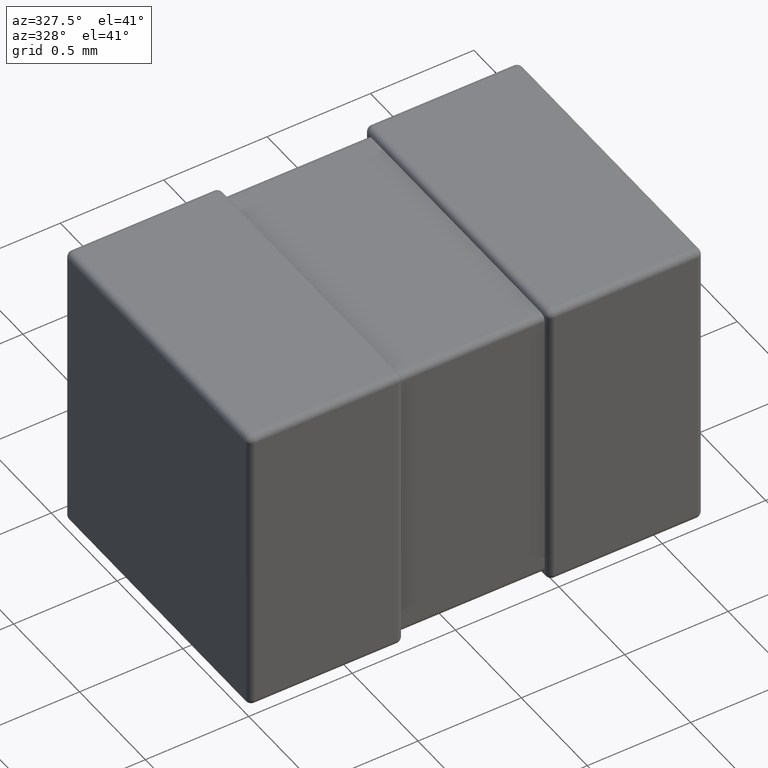
[diagram: clean part render]
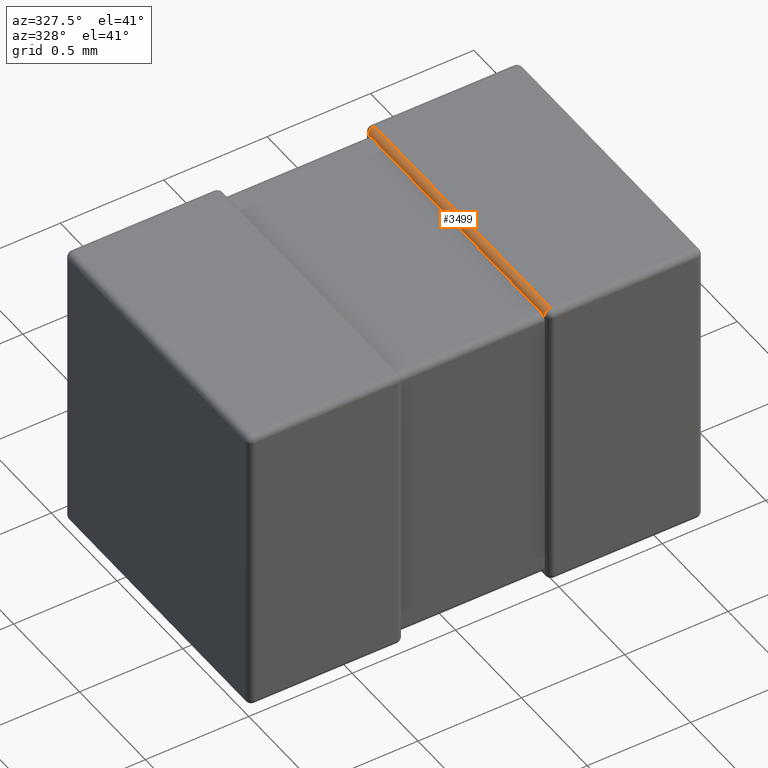
[diagram: same view with one face highlighted and labeled with its STEP entity id]
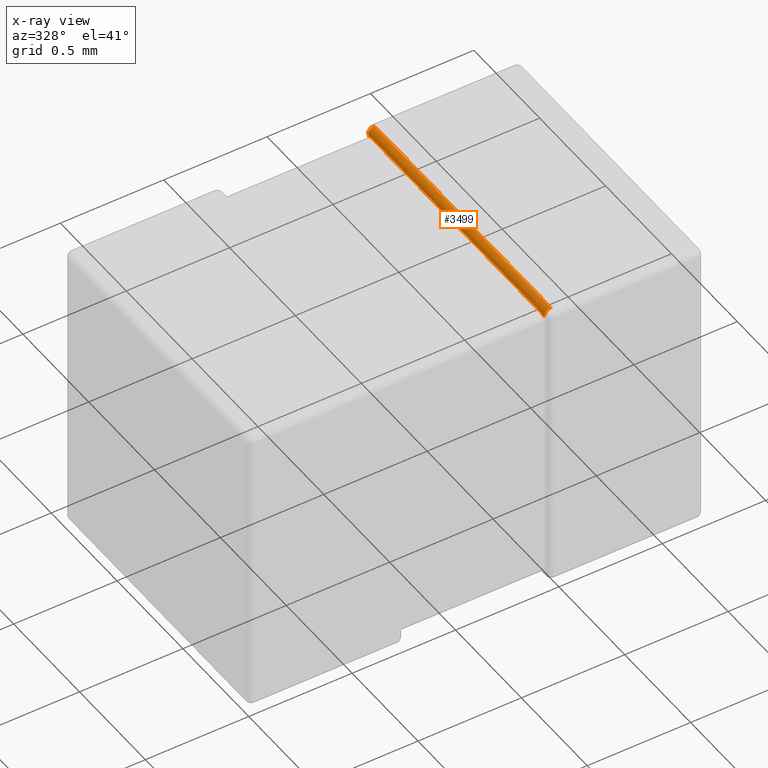
[diagram: x-ray of the same camera — body ghosted, the highlighted face saturated]
A machine part, auxiliary view. The second image highlights one B-rep face of the part: STEP entity #3499.
The next image is the same camera in x-ray: the body ghosted, the highlighted face saturated — about 0% of this face is hidden behind the body in this view.
In plain terms, the highlighted cylindrical surface (edge-blend (fillet) strip) has radius 0.0302 mm, axis along (-0, 1, 0).
Its self-contained STEP definition (entity closure, byte-faithful):
#59 = DIRECTION ( 'NONE',  ( 0.000000000000000000, 0.000000000000000000, -1.000000000000000000 ) ) ;
#113 = CARTESIAN_POINT ( 'NONE',  ( 1.450444151710232443, 0.03612577674720130610, -0.03612577674720130610 ) ) ;
#171 = CARTESIAN_POINT ( 'NONE',  ( 1.451322662047238810, 1.361006340520586333, -0.03899365947941371702 ) ) ;
#181 = CARTESIAN_POINT ( 'NONE',  ( 1.450000000000000400, 0.000000000000000000, -0.03015999999999999584 ) ) ;
#316 = DIRECTION ( 'NONE',  ( 0.000000000000000000, 0.000000000000000000, 1.000000000000000000 ) ) ;
#343 = VERTEX_POINT ( 'NONE', #3835 ) ;
#461 = VERTEX_POINT ( 'NONE', #3166 ) ;
#463 = CARTESIAN_POINT ( 'NONE',  ( 1.450000000000000400, 1.339679999999999982, -0.03015999999999999584 ) ) ;
#467 = CARTESIAN_POINT ( 'NONE',  ( 1.450000000000000400, 0.03315942190729302685, -0.03315942190729302685 ) ) ;
#496 = CARTESIAN_POINT ( 'NONE',  ( 1.480160000000000142, 0.03015999999999999931, -0.03015999999999999931 ) ) ;
#589 = CARTESIAN_POINT ( 'NONE',  ( 1.451322662047238810, 0.03899365947941372396, -0.03899365947941371702 ) ) ;
#621 = VECTOR ( 'NONE', #3748, 1000.000000000000000 ) ;
#625 = FACE_OUTER_BOUND ( 'NONE', #2389, .T. ) ;
#725 = DIRECTION ( 'NONE',  ( -0.000000000000000000, 1.000000000000000000, 0.000000000000000000 ) ) ;
#798 = EDGE_CURVE ( 'NONE', #1061, #4195, #1404, .T. ) ;
#804 = CARTESIAN_POINT ( 'NONE',  ( 1.480160000000000142, 1.369839999999999947, -0.03015999999999999584 ) ) ;
#811 = CARTESIAN_POINT ( 'NONE',  ( 1.450000000000000400, 0.05697444374258201633, -0.03015999999999999584 ) ) ;
#852 = CARTESIAN_POINT ( 'NONE',  ( 1.450253192700503124, 0.04423577735503604613, -0.03459190291318161442 ) ) ;
#874 = ORIENTED_EDGE ( 'NONE', *, *, #2045, .T. ) ;
#898 =( BOUNDED_CURVE ( )  B_SPLINE_CURVE ( 3, ( #1593, #467, #113, #2274 ),
 .UNSPECIFIED., .F., .F. ) 
 B_SPLINE_CURVE_WITH_KNOTS ( ( 4, 4 ),
 ( 4.712388980384689674, 5.009640341705894784 ),
 .UNSPECIFIED. ) 
 CURVE ( )  GEOMETRIC_REPRESENTATION_ITEM ( )  RATIONAL_B_SPLINE_CURVE ( ( 1.000000000000000000, 0.9926503465430338569, 0.9926503465430338569, 1.000000000000000000 ) ) 
 REPRESENTATION_ITEM ( '' )  );
#997 = EDGE_CURVE ( 'NONE', #4195, #343, #1857, .T. ) ;
#1004 = ORIENTED_EDGE ( 'NONE', *, *, #997, .F. ) ;
#1014 = CYLINDRICAL_SURFACE ( 'NONE', #2065, 0.03015999999999999931 ) ;
#1061 = VERTEX_POINT ( 'NONE', #3992 ) ;
#1244 = CARTESIAN_POINT ( 'NONE',  ( 1.450002264867094270, 1.344387257356502330, -0.03052961013716579131 ) ) ;
#1322 = LINE ( 'NONE', #181, #621 ) ;
#1401 = CARTESIAN_POINT ( 'NONE',  ( 1.451322662047238810, 0.03899365947941372396, -0.03899365947941371702 ) ) ;
#1404 = LINE ( 'NONE', #2825, #1641 ) ;
#1531 = ORIENTED_EDGE ( 'NONE', *, *, #4112, .T. ) ;
#1537 = CARTESIAN_POINT ( 'NONE',  ( 1.450000000000000400, 0.06031999999999999168, -0.03015999999999999584 ) ) ;
#1588 = CARTESIAN_POINT ( 'NONE',  ( 1.450652778470559623, 1.358819516460329169, -0.03680683541915661522 ) ) ;
#1593 = CARTESIAN_POINT ( 'NONE',  ( 1.450000000000000178, 0.03015999999999999584, -0.03015999999999999584 ) ) ;
#1641 = VECTOR ( 'NONE', #2067, 1000.000000000000000 ) ;
#1735 = VERTEX_POINT ( 'NONE', #3704 ) ;
#1857 = CIRCLE ( 'NONE', #4340, 0.03015999999999999931 ) ;
#1879 = VERTEX_POINT ( 'NONE', #463 ) ;
#1898 = CARTESIAN_POINT ( 'NONE',  ( 1.450000000000000400, 1.369839999999999947, -0.03015999999999999584 ) ) ;
#1901 = CARTESIAN_POINT ( 'NONE',  ( 1.450867674844866118, 0.04070245295749673475, -0.03738143296497643819 ) ) ;
#2045 = EDGE_CURVE ( 'NONE', #1061, #461, #2907, .T. ) ;
#2065 = AXIS2_PLACEMENT_3D ( 'NONE', #3440, #725, #316 ) ;
#2066 = ORIENTED_EDGE ( 'NONE', *, *, #798, .F. ) ;
#2067 = DIRECTION ( 'NONE',  ( -0.000000000000000000, -1.000000000000000000, -0.000000000000000000 ) ) ;
#2200 = EDGE_CURVE ( 'NONE', #343, #2665, #898, .T. ) ;
#2206 = ORIENTED_EDGE ( 'NONE', *, *, #2200, .F. ) ;
#2263 = CARTESIAN_POINT ( 'NONE',  ( 1.450107203367576814, 0.04726016830809479097, -0.03292877063282503153 ) ) ;
#2274 = CARTESIAN_POINT ( 'NONE',  ( 1.451322662047238810, 0.03899365947941372396, -0.03899365947941371702 ) ) ;
#2298 = CARTESIAN_POINT ( 'NONE',  ( 1.450444151710232665, 1.363874223252798723, -0.03612577674720132692 ) ) ;
#2343 = ORIENTED_EDGE ( 'NONE', *, *, #3197, .F. ) ;
#2389 = EDGE_LOOP ( 'NONE', ( #874, #3521, #1531, #2343, #3647, #2206, #1004, #2066 ) ) ;
#2597 = CARTESIAN_POINT ( 'NONE',  ( 1.450046268899098267, 0.05042334500700668826, -0.03182996981486924809 ) ) ;
#2665 = VERTEX_POINT ( 'NONE', #1401 ) ;
#2668 = CARTESIAN_POINT ( 'NONE',  ( 1.450338001875950189, 1.356198597072136858, -0.03488872359085079533 ) ) ;
#2688 = CARTESIAN_POINT ( 'NONE',  ( 1.450008297138921209, 1.347502156549001517, -0.03102180349905758056 ) ) ;
#2701 = CARTESIAN_POINT ( 'NONE',  ( 1.451069819438131292, 0.03981906007100202705, -0.03816825888768488745 ) ) ;
#2825 = CARTESIAN_POINT ( 'NONE',  ( 1.480160000000000142, 0.000000000000000000, 0.000000000000000000 ) ) ;
#2907 = CIRCLE ( 'NONE', #3861, 0.03015999999999999931 ) ;
#2952 = CARTESIAN_POINT ( 'NONE',  ( 1.451322662047238810, 1.361006340520586333, -0.03899365947941371702 ) ) ;
#2977 = CARTESIAN_POINT ( 'NONE',  ( 1.450180287205764307, 1.353383220714021062, -0.03345278313515105684 ) ) ;
#3166 = CARTESIAN_POINT ( 'NONE',  ( 1.450000000000000400, 1.369839999999999947, -0.03015999999999999584 ) ) ;
#3197 = EDGE_CURVE ( 'NONE', #1735, #1879, #1322, .T. ) ;
#3221 = DIRECTION ( 'NONE',  ( -0.000000000000000000, -1.000000000000000000, 0.000000000000000000 ) ) ;
#3372 = CARTESIAN_POINT ( 'NONE',  ( 1.450000000000000400, 1.339679999999999982, -0.03015999999999999584 ) ) ;
#3419 = EDGE_CURVE ( 'NONE', #1735, #2665, #4411, .T. ) ;
#3440 = CARTESIAN_POINT ( 'NONE',  ( 1.480160000000000142, 1.399999999999999911, -0.03015999999999999584 ) ) ;
#3499 = ADVANCED_FACE ( 'NONE', ( #625 ), #1014, .T. ) ;
#3521 = ORIENTED_EDGE ( 'NONE', *, *, #3868, .T. ) ;
#3556 = B_SPLINE_CURVE_WITH_KNOTS ( 'NONE', 3,
 ( #171, #1588, #2668, #2977, #4386, #2688, #1244, #4036, #3691, #3372 ),
 .UNSPECIFIED., .F., .F.,
 ( 4, 3, 3, 4 ),
 ( 0.000000000000000000, 9.493065180756486934E-06, 1.893605998182700681E-05, 2.360435136841301611E-05 ),
 .UNSPECIFIED. ) ;
#3566 =( BOUNDED_CURVE ( )  B_SPLINE_CURVE ( 3, ( #1898, #3679, #2298, #4001 ),
 .UNSPECIFIED., .F., .F. ) 
 B_SPLINE_CURVE_WITH_KNOTS ( ( 4, 4 ),
 ( 1.570796326794896558, 1.868047688116102778 ),
 .UNSPECIFIED. ) 
 CURVE ( )  GEOMETRIC_REPRESENTATION_ITEM ( )  RATIONAL_B_SPLINE_CURVE ( ( 1.000000000000000000, 0.9926503465430338569, 0.9926503465430338569, 1.000000000000000000 ) ) 
 REPRESENTATION_ITEM ( '' )  );
#3643 = CARTESIAN_POINT ( 'NONE',  ( 1.450706144435244260, 0.04163126649992011930, -0.03664814244375839275 ) ) ;
#3647 = ORIENTED_EDGE ( 'NONE', *, *, #3419, .T. ) ;
#3679 = CARTESIAN_POINT ( 'NONE',  ( 1.450000000000000400, 1.366840578092706870, -0.03315942190729304073 ) ) ;
#3689 = VERTEX_POINT ( 'NONE', #2952 ) ;
#3691 = CARTESIAN_POINT ( 'NONE',  ( 1.449999999999951994, 1.341253915450343781, -0.03015999999999731743 ) ) ;
#3704 = CARTESIAN_POINT ( 'NONE',  ( 1.450000000000000400, 0.06031999999999999168, -0.03015999999999999584 ) ) ;
#3748 = DIRECTION ( 'NONE',  ( -0.000000000000000000, 1.000000000000000000, -0.000000000000000000 ) ) ;
#3835 = CARTESIAN_POINT ( 'NONE',  ( 1.450000000000000178, 0.03015999999999999584, -0.03015999999999999584 ) ) ;
#3861 = AXIS2_PLACEMENT_3D ( 'NONE', #804, #3221, #4212 ) ;
#3868 = EDGE_CURVE ( 'NONE', #461, #3689, #3566, .T. ) ;
#3936 = CARTESIAN_POINT ( 'NONE',  ( 1.480160000000000142, 0.03015999999999999931, 0.000000000000000000 ) ) ;
#3992 = CARTESIAN_POINT ( 'NONE',  ( 1.480160000000000142, 1.369839999999999947, 0.000000000000000000 ) ) ;
#4001 = CARTESIAN_POINT ( 'NONE',  ( 1.451322662047238810, 1.361006340520586333, -0.03899365947941371702 ) ) ;
#4036 = CARTESIAN_POINT ( 'NONE',  ( 1.449999254202598120, 1.342832633049602542, -0.03028395988757369775 ) ) ;
#4112 = EDGE_CURVE ( 'NONE', #3689, #1879, #3556, .T. ) ;
#4195 = VERTEX_POINT ( 'NONE', #3936 ) ;
#4212 = DIRECTION ( 'NONE',  ( 0.000000000000000000, 0.000000000000000000, 1.000000000000000000 ) ) ;
#4323 = DIRECTION ( 'NONE',  ( 0.000000000000000000, -1.000000000000000000, 0.000000000000000000 ) ) ;
#4334 = CARTESIAN_POINT ( 'NONE',  ( 1.449985399699493804, 0.05358313352535765128, -0.03073234595790114501 ) ) ;
#4340 = AXIS2_PLACEMENT_3D ( 'NONE', #496, #4323, #59 ) ;
#4386 = CARTESIAN_POINT ( 'NONE',  ( 1.450023110991173425, 1.350577456366951035, -0.03202174514141920697 ) ) ;
#4411 = B_SPLINE_CURVE_WITH_KNOTS ( 'NONE', 3,
 ( #1537, #811, #4334, #2597, #2263, #852, #3643, #1901, #2701, #589 ),
 .UNSPECIFIED., .F., .F.,
 ( 4, 3, 3, 4 ),
 ( 0.000000000000000000, 1.003666877226003042E-05, 2.009406401134246180E-05, 2.363098448886283694E-05 ),
 .UNSPECIFIED. ) ;